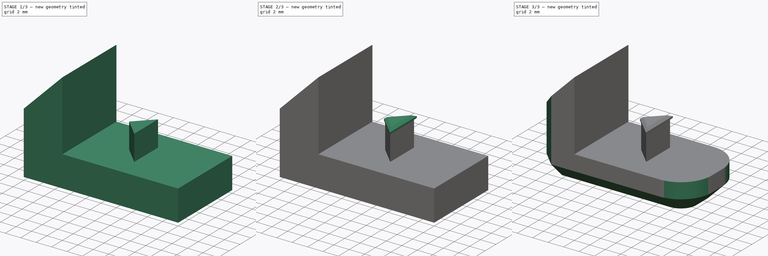
[diagram: build sequence overview — one tinted view per stage of 3, left to right]
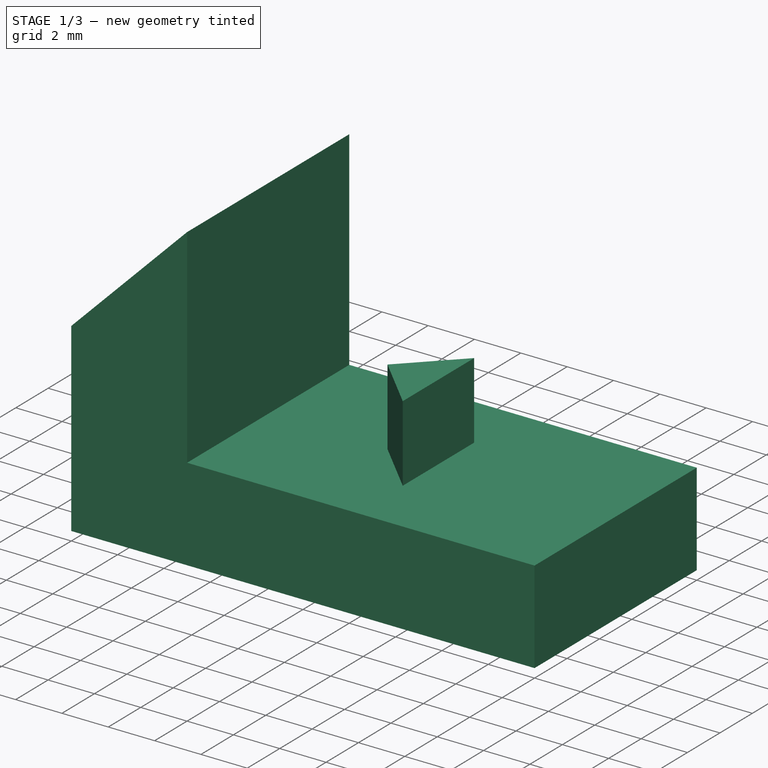
[diagram: stage 1 of 3 — iso view after this stage's code; geometry added in this stage tinted green]
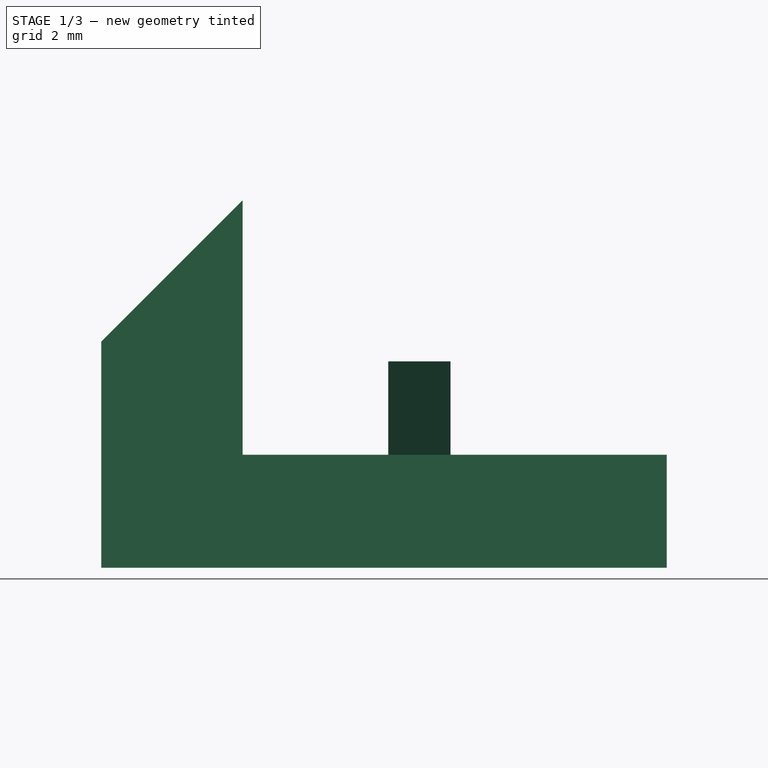
[diagram: stage 1 of 3 — front view after this stage's code; geometry added in this stage tinted green]
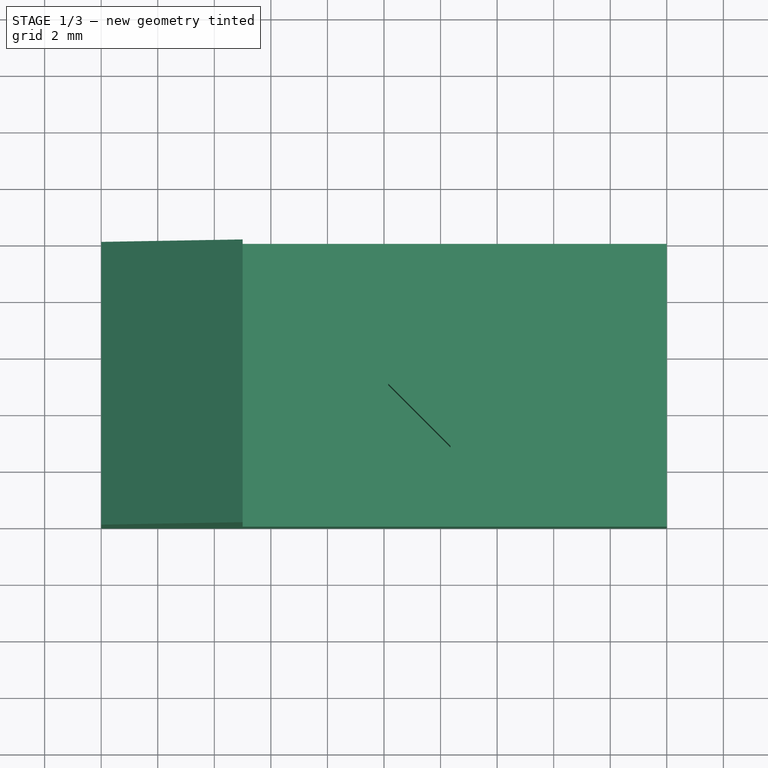
[diagram: stage 1 of 3 — top view after this stage's code; geometry added in this stage tinted green]
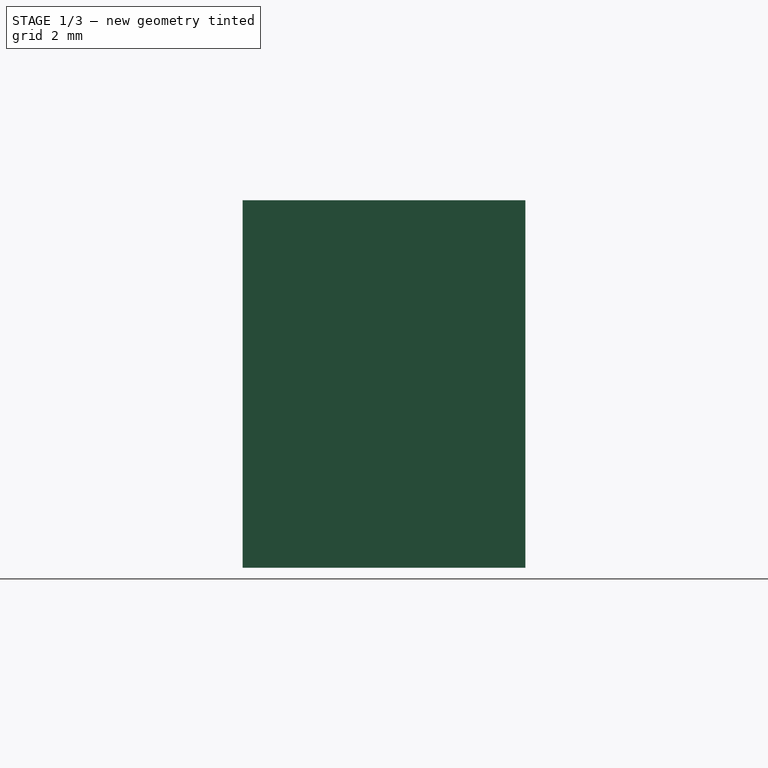
[diagram: stage 1 of 3 — right view after this stage's code; geometry added in this stage tinted green]
FCSTD DOCUMENT  (FreeCAD 0.16R6706 (Git))
Label: clip
License: All rights reserved
LicenseURL: http://en.wikipedia.org/wiki/All_rights_reserved
objects: Sketcher::SketchObject×3, PartDesign::Pad×3, PartDesign::Chamfer×3, PartDesign::Fillet×1
note: 13 computed .brp shape members not serialized (recipe doc carries the construction recipe); baked Part::Feature solids carry a one-line shape summary decoded from their .brp

FEATURE [Sketcher::SketchObject] Sketch
  Placement = pos=(0,0,0) rot=(-1,0,0;4.71239rad)
  sketch-geometry (6):
    g0: LineSegment StartX=0 StartY=8 StartZ=0 EndX=0 EndY=0 EndZ=0
    g1: LineSegment StartX=0 StartY=0 StartZ=0 EndX=20 EndY=0 EndZ=0
    g2: LineSegment StartX=20 StartY=0 StartZ=0 EndX=20 EndY=4 EndZ=0
    g3: LineSegment StartX=20 StartY=4 StartZ=0 EndX=5 EndY=4 EndZ=0
    g4: LineSegment StartX=5 StartY=4 StartZ=0 EndX=5 EndY=13 EndZ=0
    g5: LineSegment StartX=5 StartY=13 StartZ=0 EndX=0 EndY=8 EndZ=0
  constraints (17):
    c: PointOnObject(g0,g-2)
    c: Coincident(g0,g-1)
    c: Coincident(g0,g1)
    c: PointOnObject(g1,g-1)
    c: Coincident(g1,g2)
    c: Vertical(g2)
    c: Coincident(g2,g3)
    c: Horizontal(g3)
    c: Coincident(g3,g4)
    c: Vertical(g4)
    c: Coincident(g4,g5)
    c: Coincident(g5,g0)
    c: Angle(g5) = 3.92699
    c: Distance(g3) = 15
    c: Distance(g4) = 9
    c: Distance(g2) = 4
    c: Distance(g1) = 20
FEATURE [PartDesign::Pad] Pad
  Length = 10
  Length2 = 100
  Placement = pos=(0,0,0) rot=(-1,0,0;4.71239rad)
  Sketch = -> Sketch
  Type = 0
FEATURE [Sketcher::SketchObject] Sketch001
  ExternalGeometry = -> [Pad]
  Placement = pos=(0,0,4) rot=(0,0,1;3.14159rad)
  Support = -> Pad [Face4]
  sketch-geometry (7):
    g0: LineSegment StartX=-12.35 StartY=7.2 StartZ=0 EndX=-12.35 EndY=2.8 EndZ=0
    g1: LineSegment StartX=-12.35 StartY=2.8 StartZ=0 EndX=-10.15 EndY=5 EndZ=0
    g2: LineSegment StartX=-10.15 StartY=5 StartZ=0 EndX=-12.35 EndY=7.2 EndZ=0
    g3: LineSegment [constr] StartX=-12.35 StartY=5 StartZ=0 EndX=-5 EndY=5 EndZ=0
    g4: LineSegment [constr] StartX=-10.15 StartY=5 StartZ=0 EndX=-12.65 EndY=2.5 EndZ=0
    g5: LineSegment [constr] StartX=-12.65 StartY=2.5 StartZ=0 EndX=-12.65 EndY=7.5 EndZ=0
    g6: LineSegment [constr] StartX=-12.65 StartY=7.5 StartZ=0 EndX=-10.15 EndY=5 EndZ=0
  constraints (20):
    c: Vertical(g0)
    c: Coincident(g0,g1)
    c: Coincident(g1,g2)
    c: Coincident(g2,g0)
    c: Angle(g1) = 0.785398
    c: Equal(g2,g1)
    c: Distance(g0) = 4.4
    c: PointOnObject(g3,g0)
    c: PointOnObject(g3,g-5)
    c: Symmetric(g0,g0,g3)
    c: DistanceX(g1,g-5) = 5.15
    c: Symmetric(g-5,g-5,g3)
    c: Coincident(g1,g4)
    c: Coincident(g4,g5)
    c: Vertical(g5)
    c: Coincident(g5,g6)
    c: Coincident(g6,g4)
    c: Equal(g4,g6)
    c: Distance(g5) = 5
    c: Parallel(g4,g1)
FEATURE [PartDesign::Pad] Pad001
  Length = 3.3
  Length2 = 100
  Placement = pos=(0,0,0) rot=(-1,0,0;4.71239rad)
  Sketch = -> Sketch001
  Type = 0
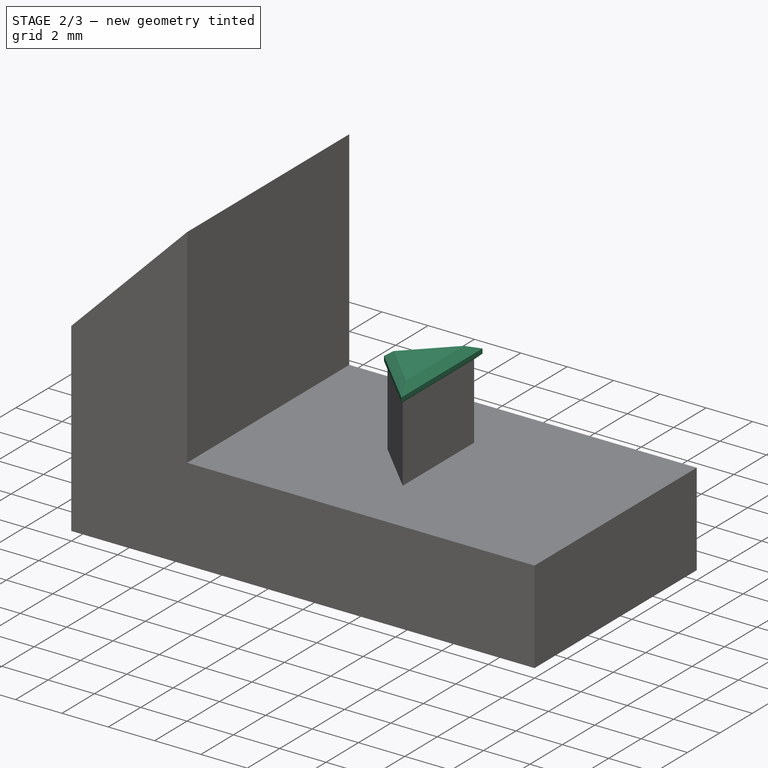
[diagram: stage 2 of 3 — iso view after this stage's code; geometry added in this stage tinted green]
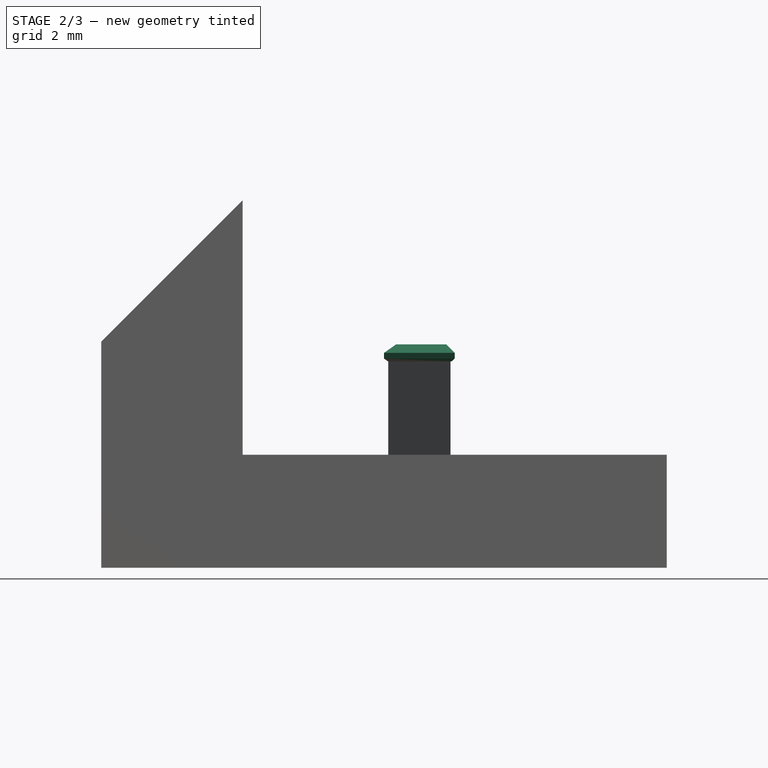
[diagram: stage 2 of 3 — front view after this stage's code; geometry added in this stage tinted green]
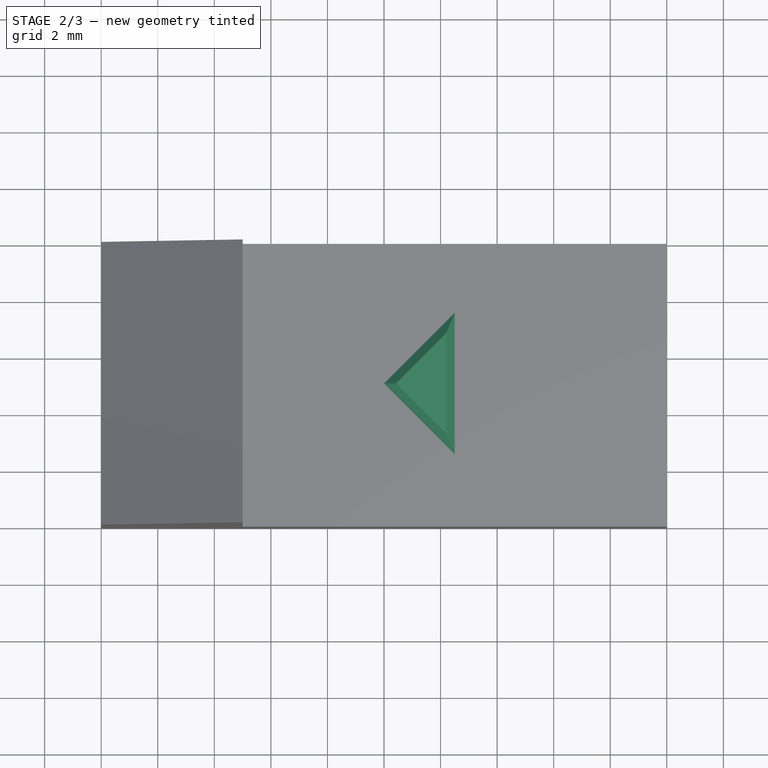
[diagram: stage 2 of 3 — top view after this stage's code; geometry added in this stage tinted green]
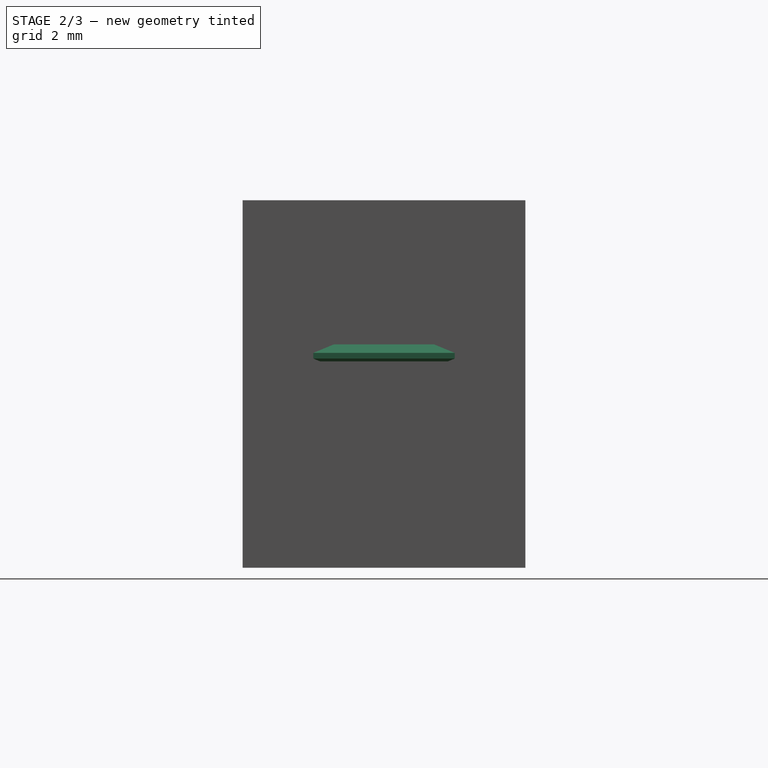
[diagram: stage 2 of 3 — right view after this stage's code; geometry added in this stage tinted green]
FEATURE [Sketcher::SketchObject] Sketch003
  ExternalGeometry = -> [Pad001]
  Placement = pos=(0,0,7.3) rot=(0,0,1;3.14159rad)
  Support = -> Pad001 [Face12]
  sketch-geometry (5):
    g0: LineSegment StartX=-12.5 StartY=2.5 StartZ=0 EndX=-10 EndY=5 EndZ=0
    g1: LineSegment StartX=-10 StartY=5 StartZ=0 EndX=-12.5 EndY=7.5 EndZ=0
    g2: LineSegment StartX=-12.5 StartY=7.5 StartZ=0 EndX=-12.5 EndY=2.5 EndZ=0
    g3: LineSegment [constr] StartX=-10.15 StartY=5 StartZ=0 EndX=-10 EndY=5 EndZ=0
    g4: LineSegment [constr] StartX=-12.35 StartY=2.8 StartZ=0 EndX=-12.5 EndY=2.8 EndZ=0
  constraints (14):
    c: Coincident(g0,g1)
    c: Coincident(g1,g2)
    c: Coincident(g2,g0)
    c: Vertical(g2)
    c: Parallel(g0,g-3)
    c: Equal(g0,g1)
    c: Distance(g2) = 5
    c: Coincident(g3,g0)
    c: Horizontal(g3)
    c: Coincident(g3,g-4)
    c: Coincident(g4,g-3)
    c: PointOnObject(g4,g2)
    c: Horizontal(g4)
    c: Equal(g4,g3)
FEATURE [PartDesign::Pad] Pad002
  Length = 0.6
  Length2 = 100
  Placement = pos=(0,0,0) rot=(-1,0,0;4.71239rad)
  Sketch = -> Sketch003
  Type = 0
FEATURE [PartDesign::Chamfer] Chamfer004
  Base = -> Pad002 [Edge29,Edge30,Edge28]
  Placement = pos=(0,0,0) rot=(-1,0,0;4.71239rad)
  Size = 0.1
FEATURE [PartDesign::Chamfer] Chamfer005
  Base = -> Chamfer004 [Edge20,Edge24,Edge23]
  Placement = pos=(0,0,0) rot=(-1,0,0;4.71239rad)
  Size = 0.3
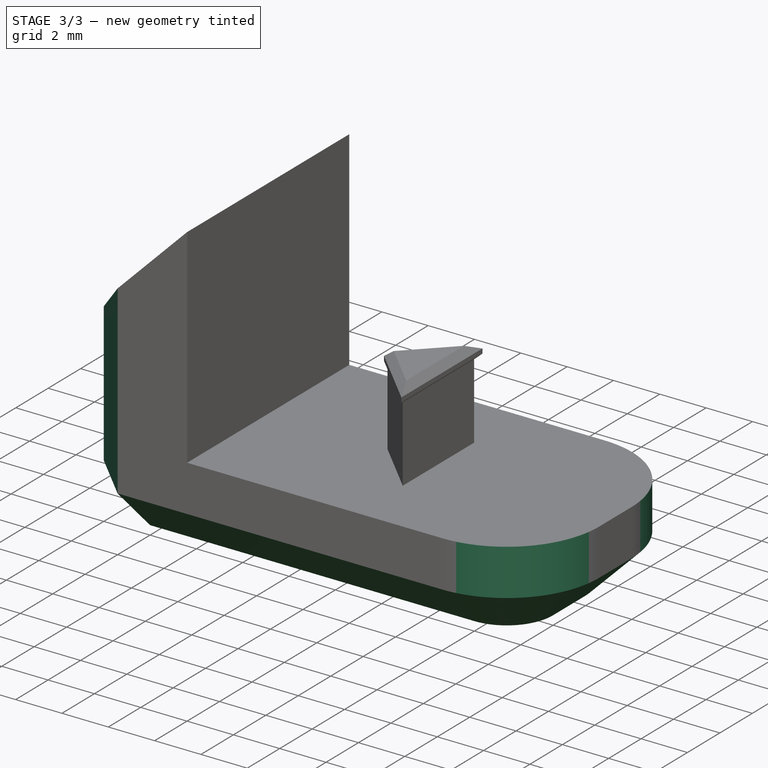
[diagram: stage 3 of 3 — iso view after this stage's code; geometry added in this stage tinted green]
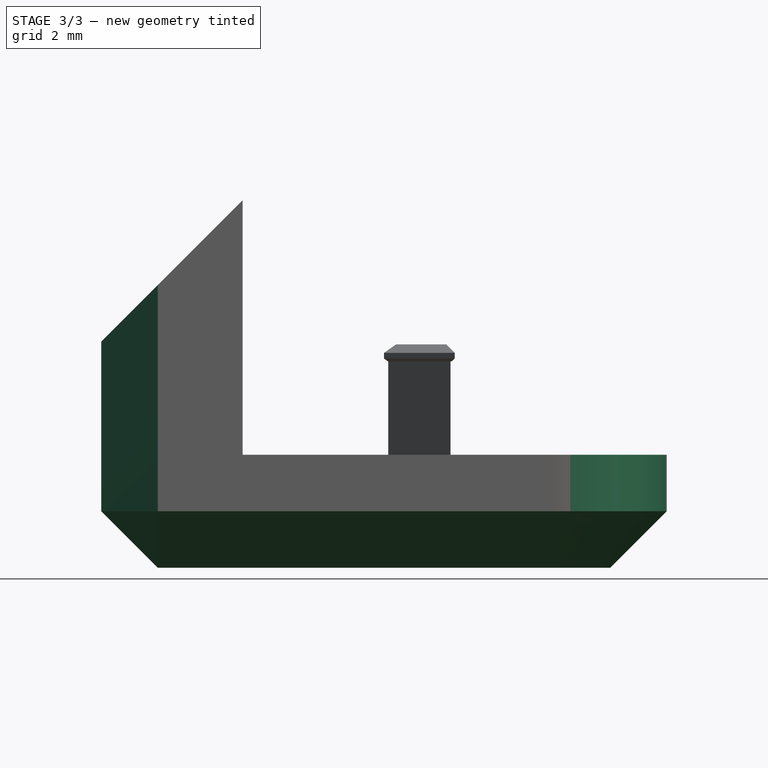
[diagram: stage 3 of 3 — front view after this stage's code; geometry added in this stage tinted green]
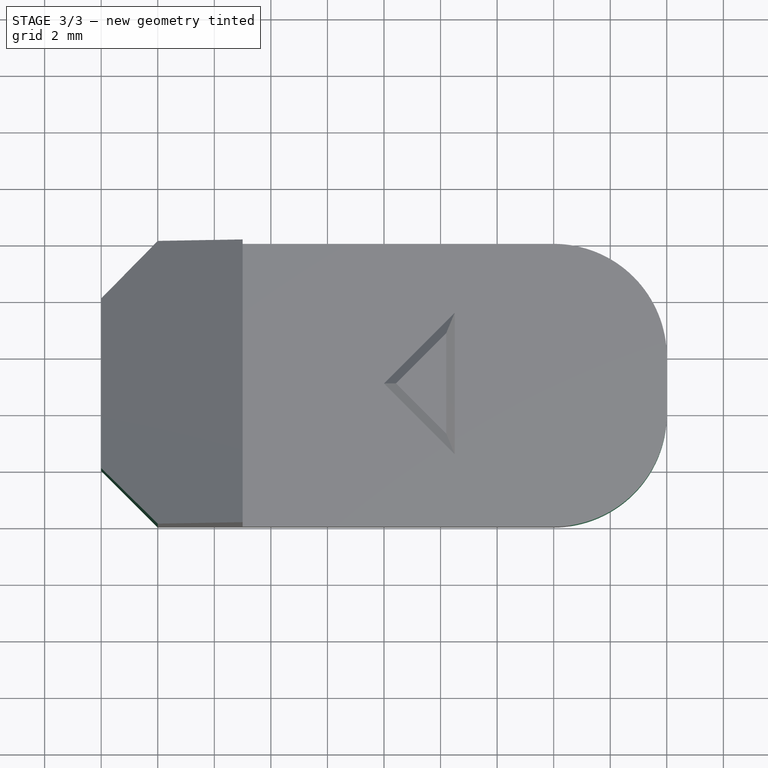
[diagram: stage 3 of 3 — top view after this stage's code; geometry added in this stage tinted green]
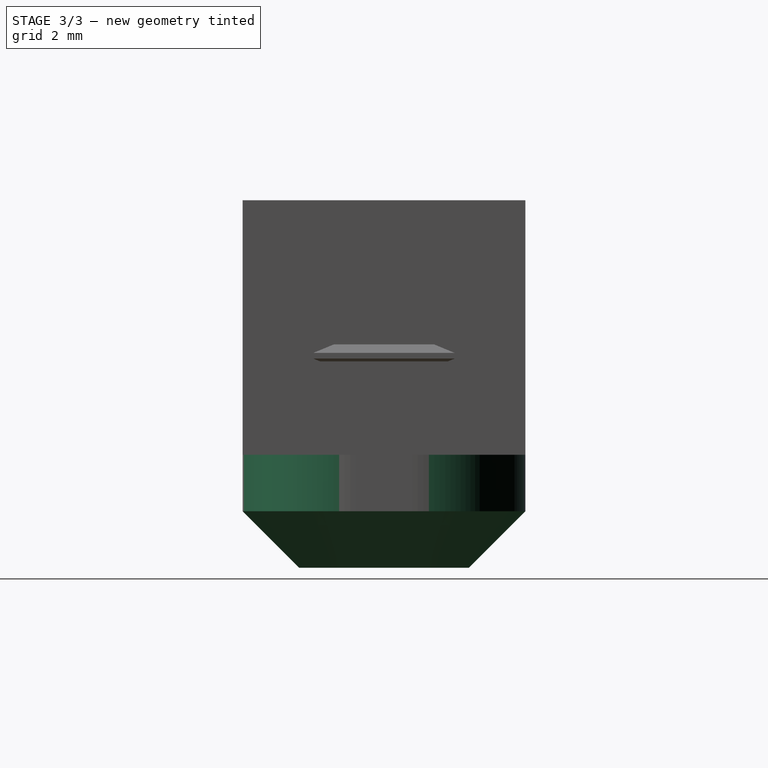
[diagram: stage 3 of 3 — right view after this stage's code; geometry added in this stage tinted green]
FEATURE [PartDesign::Fillet] Fillet
  Base = -> Chamfer005 [Edge36,Edge37]
  Placement = pos=(0,0,0) rot=(-1,0,0;4.71239rad)
  Radius = 4
FEATURE [PartDesign::Chamfer] Chamfer
  Base = -> Fillet [Edge17,Edge13,Edge10,Edge15,Edge21,Edge32,Edge18,Edge22]
  Placement = pos=(0,0,0) rot=(-1,0,0;4.71239rad)
  Size = 2
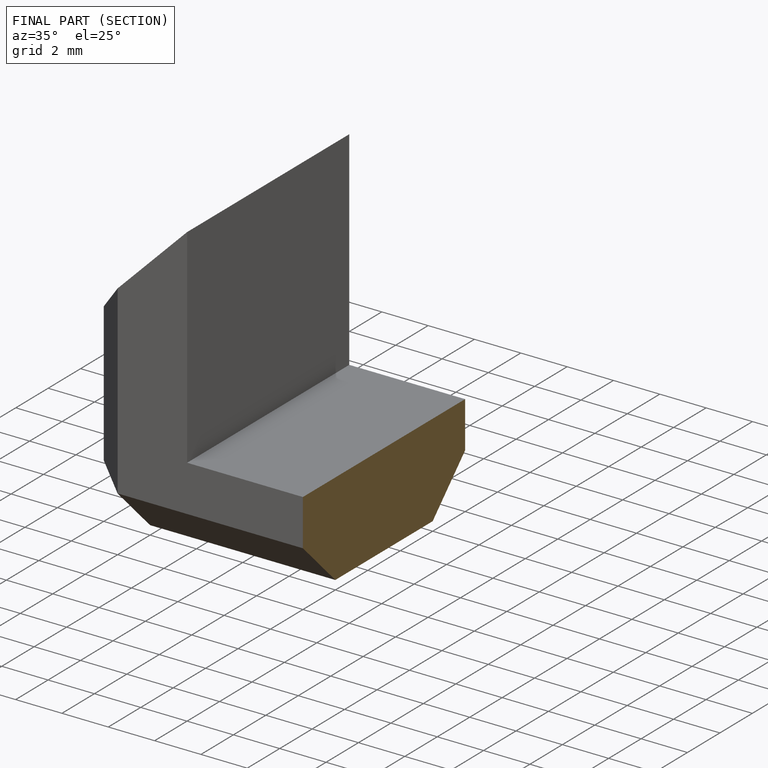
[diagram: finished part — half-section view (interior)]
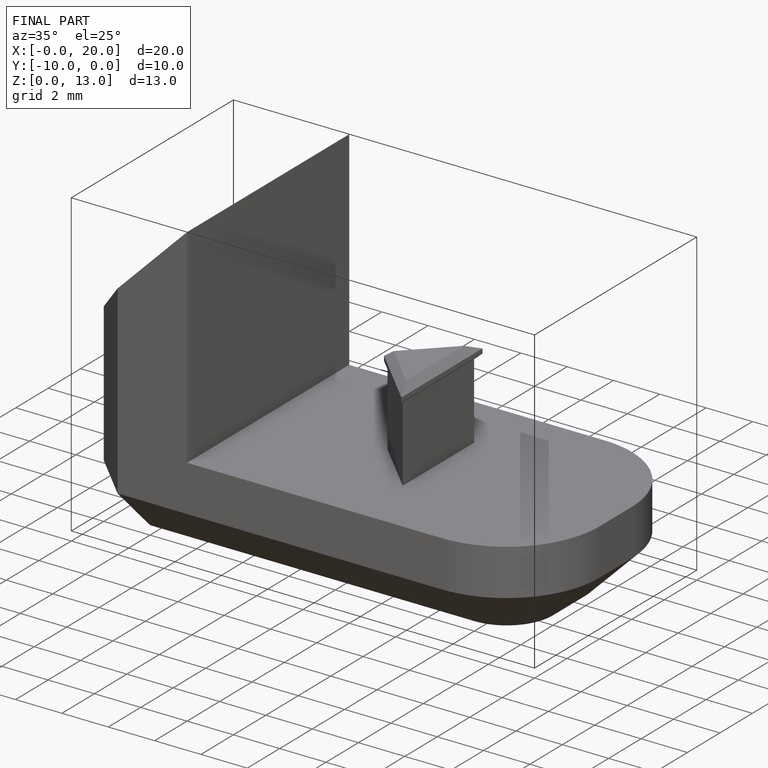
[diagram: finished part — iso view with bounding-box wireframe]
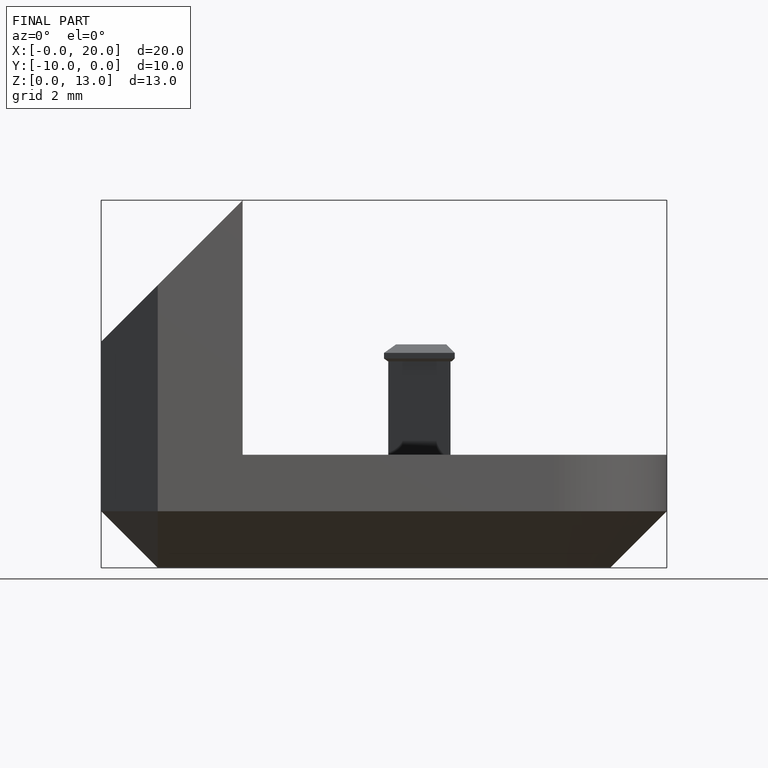
[diagram: finished part — front view with bounding-box wireframe]
